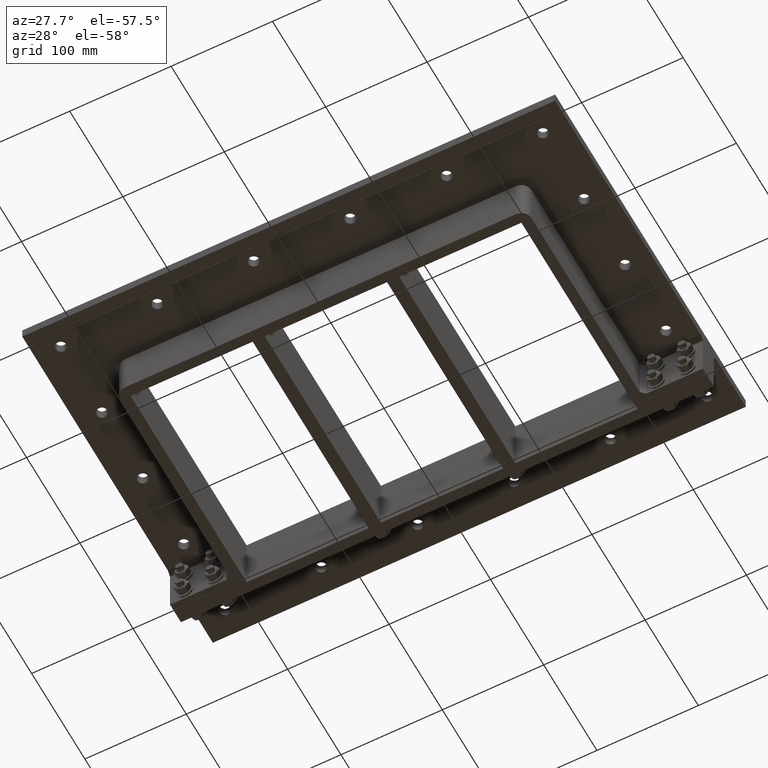
[diagram: clean part render]
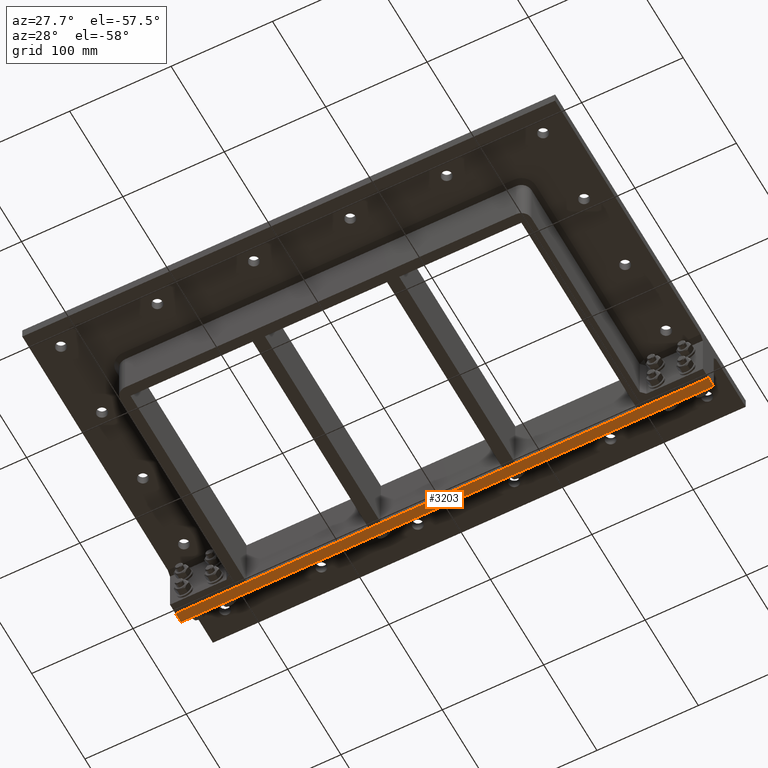
[diagram: same view with one face highlighted and labeled with its STEP entity id]
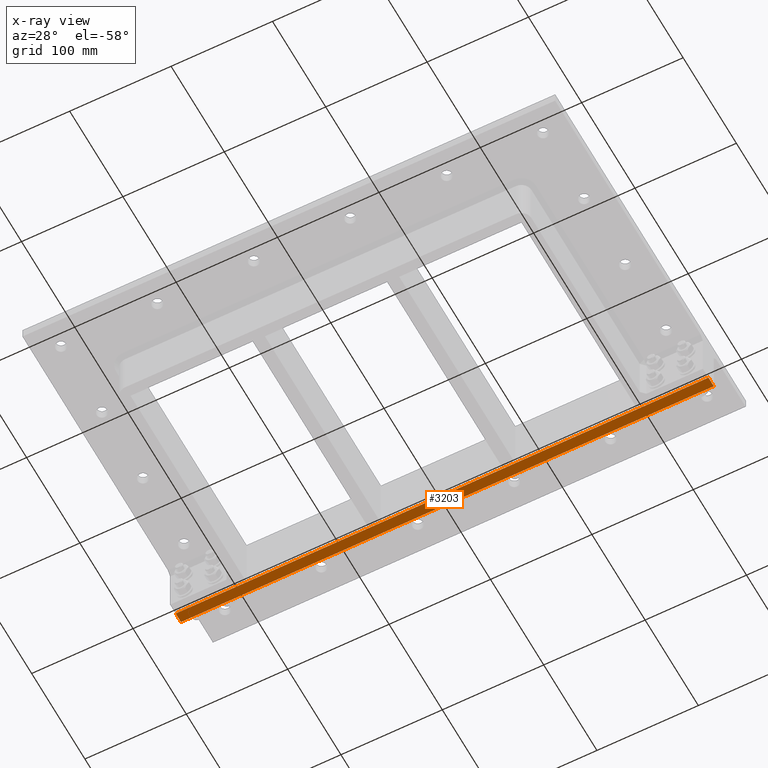
[diagram: x-ray of the same camera — body ghosted, the highlighted face saturated]
A machine part, auxiliary view. The second image highlights one B-rep face of the part: STEP entity #3203.
The next image is the same camera in x-ray: the body ghosted, the highlighted face saturated — about 0% of this face is hidden behind the body in this view.
In plain terms, the highlighted planar face has unit normal (0, 0, 1).
Its self-contained STEP definition (entity closure, byte-faithful):
#610=FACE_OUTER_BOUND('',#847,.T.);
#847=EDGE_LOOP('',(#2613,#2614,#2615,#2616));
#1108=LINE('',#5190,#1353);
#1129=LINE('',#5291,#1374);
#1132=LINE('',#5297,#1377);
#1134=LINE('',#5300,#1379);
#1353=VECTOR('',#4237,10.);
#1374=VECTOR('',#4346,10.);
#1377=VECTOR('',#4351,10.);
#1379=VECTOR('',#4355,10.);
#1592=VERTEX_POINT('',#5187);
#1593=VERTEX_POINT('',#5189);
#1629=VERTEX_POINT('',#5289);
#1631=VERTEX_POINT('',#5296);
#1929=EDGE_CURVE('',#1593,#1592,#1108,.T.);
#1980=EDGE_CURVE('',#1592,#1629,#1129,.T.);
#1983=EDGE_CURVE('',#1631,#1593,#1132,.T.);
#1985=EDGE_CURVE('',#1629,#1631,#1134,.T.);
#2613=ORIENTED_EDGE('',*,*,#1985,.T.);
#2614=ORIENTED_EDGE('',*,*,#1983,.T.);
#2615=ORIENTED_EDGE('',*,*,#1929,.T.);
#2616=ORIENTED_EDGE('',*,*,#1980,.T.);
#3069=PLANE('',#3679);
#3203=ADVANCED_FACE('',(#610),#3069,.F.);
#3679=AXIS2_PLACEMENT_3D('',#5299,#4353,#4354);
#4237=DIRECTION('',(1.,1.35212699478611E-16,0.));
#4346=DIRECTION('',(0.,-1.,0.));
#4351=DIRECTION('',(3.55271367880051E-15,1.,0.));
#4353=DIRECTION('center_axis',(0.,0.,1.));
#4354=DIRECTION('ref_axis',(1.,0.,0.));
#4355=DIRECTION('',(-1.,0.,0.));
#5187=CARTESIAN_POINT('',(262.75,119.,-60.));
#5189=CARTESIAN_POINT('',(-262.75,119.,-60.));
#5190=CARTESIAN_POINT('',(-262.75,119.,-60.));
#5289=CARTESIAN_POINT('',(262.75,109.,-60.));
#5291=CARTESIAN_POINT('',(262.75,119.,-60.));
#5296=CARTESIAN_POINT('',(-262.75,109.,-60.));
#5297=CARTESIAN_POINT('',(-262.75,109.,-60.));
#5299=CARTESIAN_POINT('Origin',(-3.5527136788005E-14,0.,-60.));
#5300=CARTESIAN_POINT('',(262.75,109.,-60.));